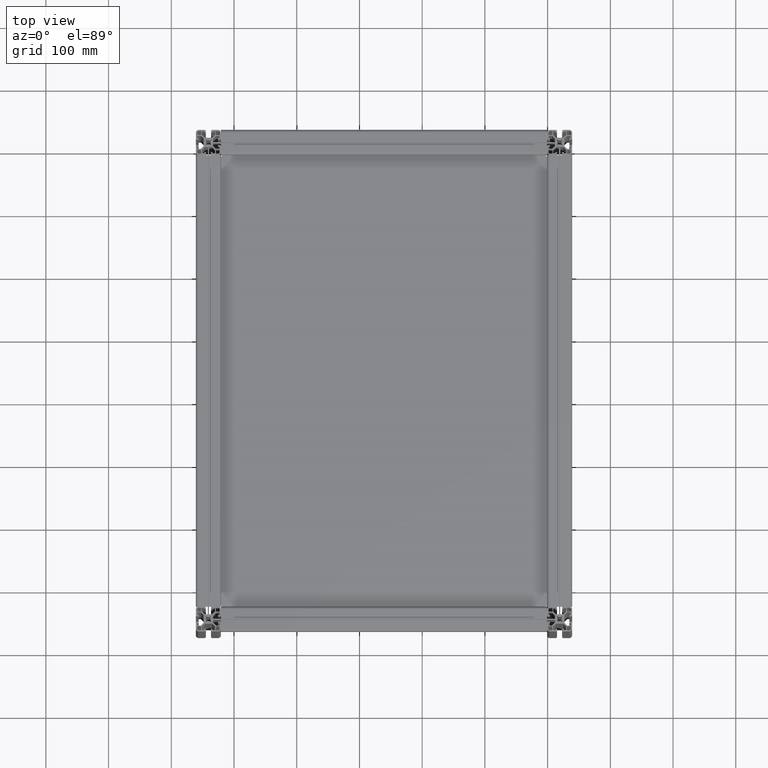
[diagram: clean part render]
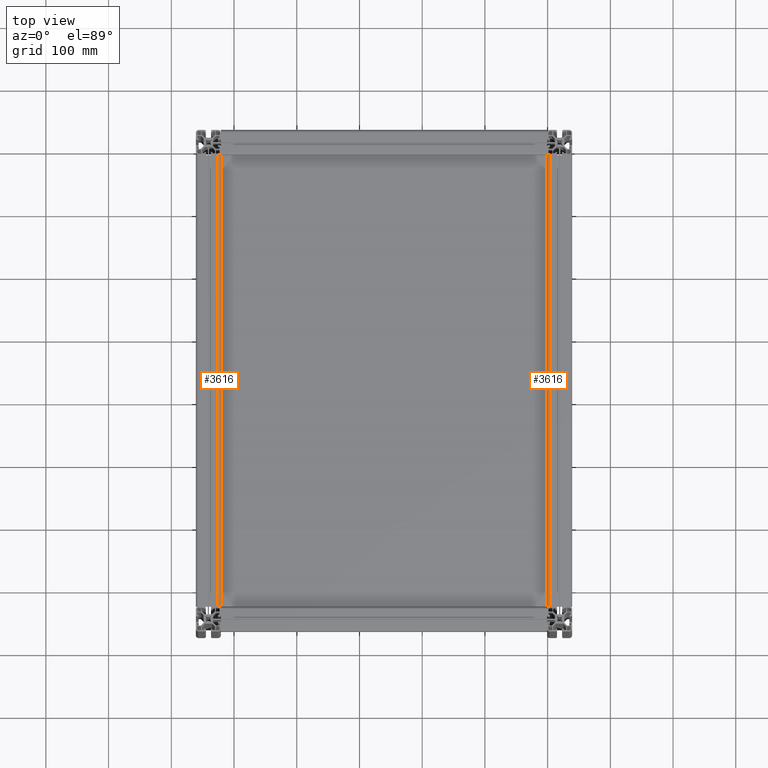
[diagram: same view with one multi-face feature highlighted, each face labeled with its STEP entity id]
A machine part, top view. The highlighted faces form ONE feature: a constant-radius fillet chain: 2 tangent blend faces with common blend radius 4.5 mm. The faces share edges in the B-rep.
Their STEP definitions:
[1] entity #3616 (Cylinder):
#473 = EDGE_CURVE ( 'NONE', #8894, #5991, #9051, .T. ) ;
#1372 = EDGE_LOOP ( 'NONE', ( #1490, #3287, #2319, #2059 ) ) ;
#1490 = ORIENTED_EDGE ( 'NONE', *, *, #6886, .T. ) ;
#1636 = CARTESIAN_POINT ( 'NONE',  ( 15.50000000000000000, -19.99999999999818101, 0.0000000000000000000 ) ) ;
#1992 = DIRECTION ( 'NONE',  ( 0.0000000000000000000, 0.0000000000000000000, 1.000000000000000000 ) ) ;
#2059 = ORIENTED_EDGE ( 'NONE', *, *, #15223, .T. ) ;
#2091 = CARTESIAN_POINT ( 'NONE',  ( 20.00000000000000000, -15.49999999999818101, 720.0000000000000000 ) ) ;
#2319 = ORIENTED_EDGE ( 'NONE', *, *, #473, .F. ) ;
#2353 = VECTOR ( 'NONE', #13817, 1000.000000000000000 ) ;
#2602 = AXIS2_PLACEMENT_3D ( 'NONE', #11524, #12733, #14029 ) ;
#2864 = AXIS2_PLACEMENT_3D ( 'NONE', #8283, #15738, #4729 ) ;
#3287 = ORIENTED_EDGE ( 'NONE', *, *, #13158, .T. ) ;
#3616 = ADVANCED_FACE ( 'NONE', ( #12147 ), #14738, .T. ) ;
#3733 = DIRECTION ( 'NONE',  ( -0.0000000000000000000, -0.0000000000000000000, -1.000000000000000000 ) ) ;
#3870 = CARTESIAN_POINT ( 'NONE',  ( 15.50000000000000000, -19.99999999999818101, 720.0000000000000000 ) ) ;
#4729 = DIRECTION ( 'NONE',  ( -1.000000000000000000, 0.0000000000000000000, 0.0000000000000000000 ) ) ;
#5358 = VERTEX_POINT ( 'NONE', #1636 ) ;
#5991 = VERTEX_POINT ( 'NONE', #2091 ) ;
#6391 = CARTESIAN_POINT ( 'NONE',  ( 20.00000000000000000, -15.49999999999818101, 0.0000000000000000000 ) ) ;
#6886 = EDGE_CURVE ( 'NONE', #5358, #12579, #9846, .T. ) ;
#7850 = AXIS2_PLACEMENT_3D ( 'NONE', #14819, #3733, #12470 ) ;
#8283 = CARTESIAN_POINT ( 'NONE',  ( 15.50000000000000000, -15.49999999999818101, 0.0000000000000000000 ) ) ;
#8894 = VERTEX_POINT ( 'NONE', #10539 ) ;
#9051 = CIRCLE ( 'NONE', #2602, 4.500000000000000888 ) ;
#9846 = CIRCLE ( 'NONE', #2864, 4.500000000000000888 ) ;
#10539 = CARTESIAN_POINT ( 'NONE',  ( 15.50000000000000000, -19.99999999999818456, 720.0000000000000000 ) ) ;
#10654 = CARTESIAN_POINT ( 'NONE',  ( 20.00000000000000000, -15.49999999999818101, 720.0000000000000000 ) ) ;
#11524 = CARTESIAN_POINT ( 'NONE',  ( 15.50000000000000000, -15.49999999999818101, 720.0000000000000000 ) ) ;
#12147 = FACE_OUTER_BOUND ( 'NONE', #1372, .T. ) ;
#12470 = DIRECTION ( 'NONE',  ( -1.000000000000000000, 0.0000000000000000000, 0.0000000000000000000 ) ) ;
#12579 = VERTEX_POINT ( 'NONE', #6391 ) ;
#12733 = DIRECTION ( 'NONE',  ( 0.0000000000000000000, 0.0000000000000000000, 1.000000000000000000 ) ) ;
#13077 = LINE ( 'NONE', #10654, #14322 ) ;
#13158 = EDGE_CURVE ( 'NONE', #12579, #5991, #13077, .T. ) ;
#13817 = DIRECTION ( 'NONE',  ( -0.0000000000000000000, -0.0000000000000000000, -1.000000000000000000 ) ) ;
#14029 = DIRECTION ( 'NONE',  ( -1.000000000000000000, 0.0000000000000000000, 0.0000000000000000000 ) ) ;
#14322 = VECTOR ( 'NONE', #1992, 1000.000000000000000 ) ;
#14738 = CYLINDRICAL_SURFACE ( 'NONE', #7850, 4.500000000000000888 ) ;
#14819 = CARTESIAN_POINT ( 'NONE',  ( 15.50000000000000000, -15.49999999999818101, 720.0000000000000000 ) ) ;
#14956 = LINE ( 'NONE', #3870, #2353 ) ;
#15223 = EDGE_CURVE ( 'NONE', #8894, #5358, #14956, .T. ) ;
#15738 = DIRECTION ( 'NONE',  ( 0.0000000000000000000, 0.0000000000000000000, 1.000000000000000000 ) ) ;
[2] entity #3616 (Cylinder):
#473 = EDGE_CURVE ( 'NONE', #8894, #5991, #9051, .T. ) ;
#1372 = EDGE_LOOP ( 'NONE', ( #1490, #3287, #2319, #2059 ) ) ;
#1490 = ORIENTED_EDGE ( 'NONE', *, *, #6886, .T. ) ;
#1636 = CARTESIAN_POINT ( 'NONE',  ( 15.50000000000000000, -19.99999999999818101, 0.0000000000000000000 ) ) ;
#1992 = DIRECTION ( 'NONE',  ( 0.0000000000000000000, 0.0000000000000000000, 1.000000000000000000 ) ) ;
#2059 = ORIENTED_EDGE ( 'NONE', *, *, #15223, .T. ) ;
#2091 = CARTESIAN_POINT ( 'NONE',  ( 20.00000000000000000, -15.49999999999818101, 720.0000000000000000 ) ) ;
#2319 = ORIENTED_EDGE ( 'NONE', *, *, #473, .F. ) ;
#2353 = VECTOR ( 'NONE', #13817, 1000.000000000000000 ) ;
#2602 = AXIS2_PLACEMENT_3D ( 'NONE', #11524, #12733, #14029 ) ;
#2864 = AXIS2_PLACEMENT_3D ( 'NONE', #8283, #15738, #4729 ) ;
#3287 = ORIENTED_EDGE ( 'NONE', *, *, #13158, .T. ) ;
#3616 = ADVANCED_FACE ( 'NONE', ( #12147 ), #14738, .T. ) ;
#3733 = DIRECTION ( 'NONE',  ( -0.0000000000000000000, -0.0000000000000000000, -1.000000000000000000 ) ) ;
#3870 = CARTESIAN_POINT ( 'NONE',  ( 15.50000000000000000, -19.99999999999818101, 720.0000000000000000 ) ) ;
#4729 = DIRECTION ( 'NONE',  ( -1.000000000000000000, 0.0000000000000000000, 0.0000000000000000000 ) ) ;
#5358 = VERTEX_POINT ( 'NONE', #1636 ) ;
#5991 = VERTEX_POINT ( 'NONE', #2091 ) ;
#6391 = CARTESIAN_POINT ( 'NONE',  ( 20.00000000000000000, -15.49999999999818101, 0.0000000000000000000 ) ) ;
#6886 = EDGE_CURVE ( 'NONE', #5358, #12579, #9846, .T. ) ;
#7850 = AXIS2_PLACEMENT_3D ( 'NONE', #14819, #3733, #12470 ) ;
#8283 = CARTESIAN_POINT ( 'NONE',  ( 15.50000000000000000, -15.49999999999818101, 0.0000000000000000000 ) ) ;
#8894 = VERTEX_POINT ( 'NONE', #10539 ) ;
#9051 = CIRCLE ( 'NONE', #2602, 4.500000000000000888 ) ;
#9846 = CIRCLE ( 'NONE', #2864, 4.500000000000000888 ) ;
#10539 = CARTESIAN_POINT ( 'NONE',  ( 15.50000000000000000, -19.99999999999818456, 720.0000000000000000 ) ) ;
#10654 = CARTESIAN_POINT ( 'NONE',  ( 20.00000000000000000, -15.49999999999818101, 720.0000000000000000 ) ) ;
#11524 = CARTESIAN_POINT ( 'NONE',  ( 15.50000000000000000, -15.49999999999818101, 720.0000000000000000 ) ) ;
#12147 = FACE_OUTER_BOUND ( 'NONE', #1372, .T. ) ;
#12470 = DIRECTION ( 'NONE',  ( -1.000000000000000000, 0.0000000000000000000, 0.0000000000000000000 ) ) ;
#12579 = VERTEX_POINT ( 'NONE', #6391 ) ;
#12733 = DIRECTION ( 'NONE',  ( 0.0000000000000000000, 0.0000000000000000000, 1.000000000000000000 ) ) ;
#13077 = LINE ( 'NONE', #10654, #14322 ) ;
#13158 = EDGE_CURVE ( 'NONE', #12579, #5991, #13077, .T. ) ;
#13817 = DIRECTION ( 'NONE',  ( -0.0000000000000000000, -0.0000000000000000000, -1.000000000000000000 ) ) ;
#14029 = DIRECTION ( 'NONE',  ( -1.000000000000000000, 0.0000000000000000000, 0.0000000000000000000 ) ) ;
#14322 = VECTOR ( 'NONE', #1992, 1000.000000000000000 ) ;
#14738 = CYLINDRICAL_SURFACE ( 'NONE', #7850, 4.500000000000000888 ) ;
#14819 = CARTESIAN_POINT ( 'NONE',  ( 15.50000000000000000, -15.49999999999818101, 720.0000000000000000 ) ) ;
#14956 = LINE ( 'NONE', #3870, #2353 ) ;
#15223 = EDGE_CURVE ( 'NONE', #8894, #5358, #14956, .T. ) ;
#15738 = DIRECTION ( 'NONE',  ( 0.0000000000000000000, 0.0000000000000000000, 1.000000000000000000 ) ) ;